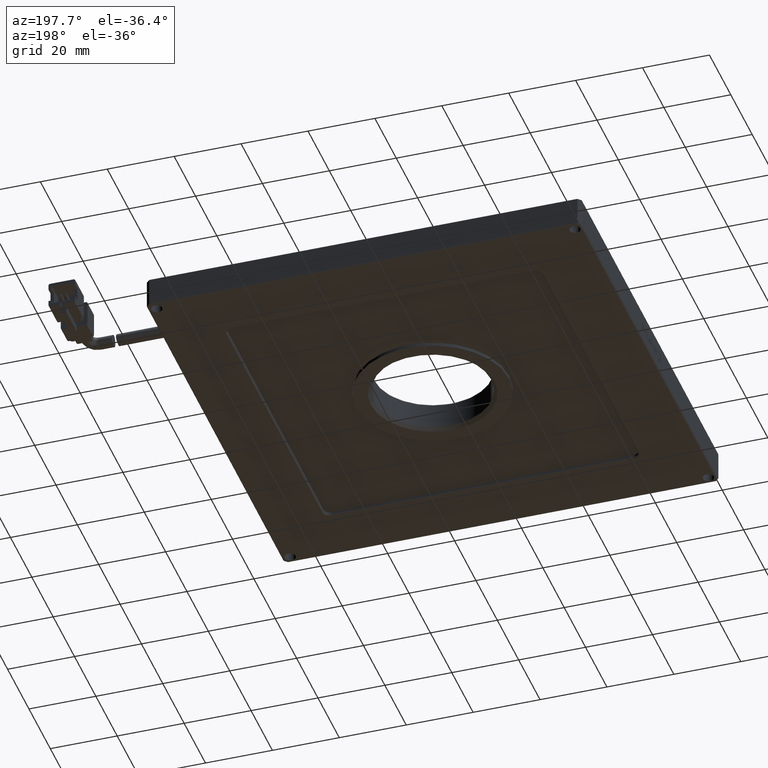
[diagram: clean part render]
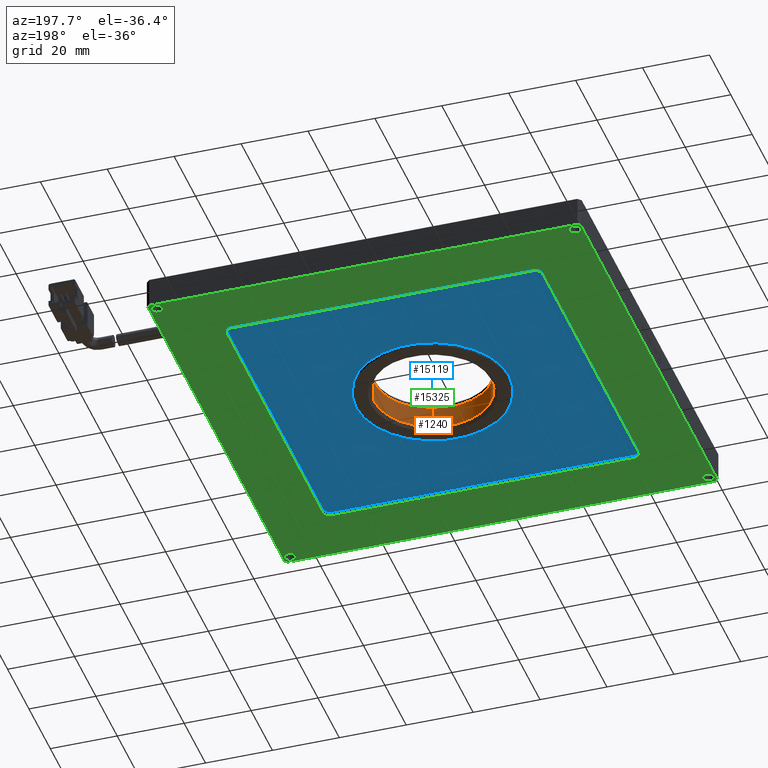
[diagram: same view with three faces highlighted in distinct colors, each labeled with its STEP entity id]
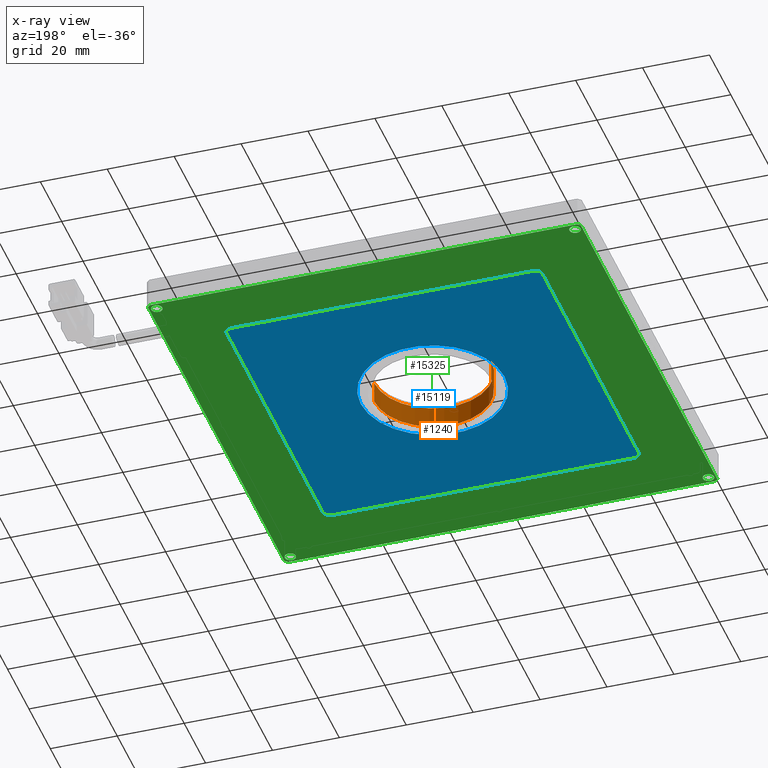
[diagram: x-ray of the same camera — body ghosted, the three highlighted faces saturated]
A machine part, auxiliary view with three faces highlighted in distinct colors.
The next image is the same camera in x-ray (body ghosted, the three faces saturated) — at least one of them is partly hidden behind the body in this view.
Their STEP definitions:

[orange] entity #1240 — the highlighted cylindrical surface (partial cylindrical patch) has radius 17.5 mm, axis along (0, 0, -1).
#455 = CARTESIAN_POINT ( 'NONE',  ( 26.12907407407412200, 24.05944444444444500, -61.53117956449462900 ) ) ;
#744 = DIRECTION ( 'NONE',  ( 0.0000000000000000000, 0.0000000000000000000, -1.000000000000000000 ) ) ;
#895 = CIRCLE ( 'NONE', #17156, 17.50000000000000400 ) ;
#1240 = ADVANCED_FACE ( 'NONE', ( #19250 ), #13852, .F. ) ;
#1347 = AXIS2_PLACEMENT_3D ( 'NONE', #5058, #7903, #11028 ) ;
#1676 = EDGE_CURVE ( 'NONE', #18579, #2080, #895, .T. ) ;
#2080 = VERTEX_POINT ( 'NONE', #3123 ) ;
#3123 = CARTESIAN_POINT ( 'NONE',  ( 8.629074074074115000, 24.05944444444444100, 4.499999999999997300 ) ) ;
#3510 = VECTOR ( 'NONE', #744, 1000.000000000000000 ) ;
#3543 = CARTESIAN_POINT ( 'NONE',  ( 26.12907407407412200, 24.05944444444444500, 4.499999999999997300 ) ) ;
#3770 = CARTESIAN_POINT ( 'NONE',  ( 8.629074074074115000, 24.05944444444444100, -61.53117956449462900 ) ) ;
#3971 = EDGE_CURVE ( 'NONE', #18579, #18957, #8566, .T. ) ;
#5058 = CARTESIAN_POINT ( 'NONE',  ( 26.12907407407412200, 24.05944444444444500, -1.999999999999994900 ) ) ;
#5731 = LINE ( 'NONE', #3770, #3510 ) ;
#6560 = DIRECTION ( 'NONE',  ( -1.000000000000000000, -1.982541115402064900E-016, 0.0000000000000000000 ) ) ;
#6958 = VERTEX_POINT ( 'NONE', #8220 ) ;
#7399 = ORIENTED_EDGE ( 'NONE', *, *, #15546, .F. ) ;
#7769 = DIRECTION ( 'NONE',  ( 0.0000000000000000000, 0.0000000000000000000, -1.000000000000000000 ) ) ;
#7903 = DIRECTION ( 'NONE',  ( 0.0000000000000000000, 0.0000000000000000000, -1.000000000000000000 ) ) ;
#8220 = CARTESIAN_POINT ( 'NONE',  ( 8.629074074074115000, 24.05944444444444100, -1.999999999999994900 ) ) ;
#8428 = ORIENTED_EDGE ( 'NONE', *, *, #1676, .F. ) ;
#8566 = LINE ( 'NONE', #20228, #14686 ) ;
#8946 = ORIENTED_EDGE ( 'NONE', *, *, #9385, .T. ) ;
#9385 = EDGE_CURVE ( 'NONE', #18957, #6958, #13227, .T. ) ;
#9892 = DIRECTION ( 'NONE',  ( 0.0000000000000000000, 0.0000000000000000000, -1.000000000000000000 ) ) ;
#11028 = DIRECTION ( 'NONE',  ( -1.000000000000000000, -1.982541115402064900E-016, 0.0000000000000000000 ) ) ;
#11242 = DIRECTION ( 'NONE',  ( 0.0000000000000000000, 0.0000000000000000000, -1.000000000000000000 ) ) ;
#11480 = AXIS2_PLACEMENT_3D ( 'NONE', #455, #9892, #11949 ) ;
#11949 = DIRECTION ( 'NONE',  ( -1.000000000000000000, -1.982541115402064900E-016, 0.0000000000000000000 ) ) ;
#13227 = CIRCLE ( 'NONE', #1347, 17.50000000000000400 ) ;
#13852 = CYLINDRICAL_SURFACE ( 'NONE', #11480, 17.50000000000000400 ) ;
#14221 = CARTESIAN_POINT ( 'NONE',  ( 43.62907407407412600, 24.05944444444444800, -1.999999999999994900 ) ) ;
#14439 = CARTESIAN_POINT ( 'NONE',  ( 43.62907407407412600, 24.05944444444444800, 4.499999999999997300 ) ) ;
#14686 = VECTOR ( 'NONE', #7769, 1000.000000000000000 ) ;
#15546 = EDGE_CURVE ( 'NONE', #2080, #6958, #5731, .T. ) ;
#17156 = AXIS2_PLACEMENT_3D ( 'NONE', #3543, #11242, #6560 ) ;
#17717 = ORIENTED_EDGE ( 'NONE', *, *, #3971, .T. ) ;
#18579 = VERTEX_POINT ( 'NONE', #14439 ) ;
#18957 = VERTEX_POINT ( 'NONE', #14221 ) ;
#19175 = EDGE_LOOP ( 'NONE', ( #8428, #17717, #8946, #7399 ) ) ;
#19250 = FACE_OUTER_BOUND ( 'NONE', #19175, .T. ) ;
#20228 = CARTESIAN_POINT ( 'NONE',  ( 43.62907407407412600, 24.05944444444444800, -61.53117956449462900 ) ) ;

[blue] entity #15119 — the highlighted planar face has unit normal (0, 0, -1).
#149 = VERTEX_POINT ( 'NONE', #1813 ) ;
#679 = CARTESIAN_POINT ( 'NONE',  ( 82.12907407407411100, -31.94055555555555500, -2.000000000000000000 ) ) ;
#835 = EDGE_CURVE ( 'NONE', #4796, #149, #20055, .T. ) ;
#837 = DIRECTION ( 'NONE',  ( 0.0000000000000000000, 0.0000000000000000000, -1.000000000000000000 ) ) ;
#1411 = VERTEX_POINT ( 'NONE', #18231 ) ;
#1419 = DIRECTION ( 'NONE',  ( -1.000000000000000000, -0.0000000000000000000, 0.0000000000000000000 ) ) ;
#1505 = ORIENTED_EDGE ( 'NONE', *, *, #3098, .T. ) ;
#1813 = CARTESIAN_POINT ( 'NONE',  ( 4.629074074074115000, 24.05944444444444500, -2.000000000000000000 ) ) ;
#1915 = EDGE_CURVE ( 'NONE', #11347, #19629, #15314, .T. ) ;
#2496 = CARTESIAN_POINT ( 'NONE',  ( -29.87092592592589200, 80.05944444444445200, -2.000000000000000000 ) ) ;
#2785 = LINE ( 'NONE', #11569, #14010 ) ;
#2999 = CARTESIAN_POINT ( 'NONE',  ( -29.87092592592589200, -31.94055555555555500, -2.000000000000000000 ) ) ;
#3098 = EDGE_CURVE ( 'NONE', #1411, #11347, #2785, .T. ) ;
#4325 = ORIENTED_EDGE ( 'NONE', *, *, #8796, .T. ) ;
#4527 = EDGE_LOOP ( 'NONE', ( #12439, #18872 ) ) ;
#4796 = VERTEX_POINT ( 'NONE', #20067 ) ;
#5712 = VECTOR ( 'NONE', #20241, 1000.000000000000000 ) ;
#5789 = DIRECTION ( 'NONE',  ( 0.0000000000000000000, 0.0000000000000000000, 1.000000000000000000 ) ) ;
#5790 = CARTESIAN_POINT ( 'NONE',  ( -29.87092592592589200, 80.05944444444445200, -2.000000000000000000 ) ) ;
#5792 = PLANE ( 'NONE',  #6479 ) ;
#5829 = DIRECTION ( 'NONE',  ( -1.000000000000000000, 0.0000000000000000000, 0.0000000000000000000 ) ) ;
#6158 = VERTEX_POINT ( 'NONE', #5790 ) ;
#6479 = AXIS2_PLACEMENT_3D ( 'NONE', #2496, #837, #16503 ) ;
#6805 = DIRECTION ( 'NONE',  ( -0.0000000000000000000, -1.000000000000000000, 0.0000000000000000000 ) ) ;
#7323 = FACE_OUTER_BOUND ( 'NONE', #15830, .T. ) ;
#7446 = CARTESIAN_POINT ( 'NONE',  ( 26.12907407407411900, 24.05944444444444500, -2.000000000000000000 ) ) ;
#8796 = EDGE_CURVE ( 'NONE', #6158, #1411, #16126, .T. ) ;
#9064 = CARTESIAN_POINT ( 'NONE',  ( -29.87092592592589200, -31.94055555555555500, -2.000000000000000000 ) ) ;
#9822 = LINE ( 'NONE', #9064, #5712 ) ;
#9977 = FACE_BOUND ( 'NONE', #4527, .T. ) ;
#11347 = VERTEX_POINT ( 'NONE', #679 ) ;
#11569 = CARTESIAN_POINT ( 'NONE',  ( 82.12907407407411100, -31.94055555555555500, -2.000000000000000000 ) ) ;
#11648 = VECTOR ( 'NONE', #1419, 1000.000000000000000 ) ;
#11755 = CIRCLE ( 'NONE', #17200, 21.50000000000000000 ) ;
#12439 = ORIENTED_EDGE ( 'NONE', *, *, #19292, .T. ) ;
#12765 = DIRECTION ( 'NONE',  ( 1.000000000000000000, 0.0000000000000000000, 0.0000000000000000000 ) ) ;
#14010 = VECTOR ( 'NONE', #6805, 1000.000000000000000 ) ;
#14215 = CARTESIAN_POINT ( 'NONE',  ( -29.87092592592589200, 80.05944444444445200, -2.000000000000000000 ) ) ;
#14594 = CARTESIAN_POINT ( 'NONE',  ( -29.87092592592589200, -31.94055555555555500, -2.000000000000000000 ) ) ;
#14989 = DIRECTION ( 'NONE',  ( -1.000000000000000000, 0.0000000000000000000, 0.0000000000000000000 ) ) ;
#15119 = ADVANCED_FACE ( 'NONE', ( #7323, #9977 ), #5792, .T. ) ;
#15235 = DIRECTION ( 'NONE',  ( 0.0000000000000000000, 0.0000000000000000000, 1.000000000000000000 ) ) ;
#15314 = LINE ( 'NONE', #2999, #11648 ) ;
#15422 = AXIS2_PLACEMENT_3D ( 'NONE', #19807, #5789, #14989 ) ;
#15781 = EDGE_CURVE ( 'NONE', #19629, #6158, #9822, .T. ) ;
#15830 = EDGE_LOOP ( 'NONE', ( #1505, #16558, #15858, #4325 ) ) ;
#15858 = ORIENTED_EDGE ( 'NONE', *, *, #15781, .T. ) ;
#16126 = LINE ( 'NONE', #14215, #18094 ) ;
#16503 = DIRECTION ( 'NONE',  ( -1.000000000000000000, 0.0000000000000000000, -0.0000000000000000000 ) ) ;
#16558 = ORIENTED_EDGE ( 'NONE', *, *, #1915, .T. ) ;
#17200 = AXIS2_PLACEMENT_3D ( 'NONE', #7446, #15235, #5829 ) ;
#18094 = VECTOR ( 'NONE', #12765, 1000.000000000000000 ) ;
#18231 = CARTESIAN_POINT ( 'NONE',  ( 82.12907407407411100, 80.05944444444445200, -2.000000000000000000 ) ) ;
#18872 = ORIENTED_EDGE ( 'NONE', *, *, #835, .T. ) ;
#19292 = EDGE_CURVE ( 'NONE', #149, #4796, #11755, .T. ) ;
#19629 = VERTEX_POINT ( 'NONE', #14594 ) ;
#19807 = CARTESIAN_POINT ( 'NONE',  ( 26.12907407407411900, 24.05944444444444500, -2.000000000000000000 ) ) ;
#20055 = CIRCLE ( 'NONE', #15422, 21.50000000000000000 ) ;
#20067 = CARTESIAN_POINT ( 'NONE',  ( 47.62907407407411900, 24.05944444444444800, -2.000000000000000000 ) ) ;
#20241 = DIRECTION ( 'NONE',  ( -0.0000000000000000000, 1.000000000000000000, 0.0000000000000000000 ) ) ;

[green] entity #15325 — the highlighted planar face has unit normal (0, 0, -1).
#157 = VERTEX_POINT ( 'NONE', #5121 ) ;
#240 = DIRECTION ( 'NONE',  ( 1.000000000000000000, 0.0000000000000000000, 0.0000000000000000000 ) ) ;
#410 = DIRECTION ( 'NONE',  ( -1.000000000000000000, 0.0000000000000000000, -0.0000000000000000000 ) ) ;
#411 = VECTOR ( 'NONE', #1346, 1000.000000000000000 ) ;
#554 = CARTESIAN_POINT ( 'NONE',  ( -18.87092592592591000, -20.94055555555555200, -3.000000000000000000 ) ) ;
#635 = ORIENTED_EDGE ( 'NONE', *, *, #10273, .T. ) ;
#716 = CARTESIAN_POINT ( 'NONE',  ( 90.00481000536216000, -40.64055555555555800, -3.000000000000000000 ) ) ;
#734 = EDGE_CURVE ( 'NONE', #3339, #7480, #1193, .T. ) ;
#931 = CARTESIAN_POINT ( 'NONE',  ( -34.72092592592591100, 86.55944444444445200, -3.000000000000000000 ) ) ;
#936 = DIRECTION ( 'NONE',  ( -1.000000000000000000, 1.810146235794587100E-014, 0.0000000000000000000 ) ) ;
#1193 = LINE ( 'NONE', #19158, #5384 ) ;
#1207 = EDGE_CURVE ( 'NONE', #15502, #17710, #9455, .T. ) ;
#1255 = DIRECTION ( 'NONE',  ( 1.000000000000000000, -0.0000000000000000000, 0.0000000000000000000 ) ) ;
#1346 = DIRECTION ( 'NONE',  ( -0.0000000000000000000, -1.000000000000000000, -0.0000000000000000000 ) ) ;
#1548 = CARTESIAN_POINT ( 'NONE',  ( -21.17092592592590300, 69.05944444444443800, -3.000000000000000000 ) ) ;
#1567 = FACE_BOUND ( 'NONE', #9399, .T. ) ;
#1607 = CARTESIAN_POINT ( 'NONE',  ( 88.62907407407409700, -38.44055555555554800, -3.000000000000000000 ) ) ;
#1711 = DIRECTION ( 'NONE',  ( 0.0000000000000000000, 1.000000000000000000, 0.0000000000000000000 ) ) ;
#1795 = EDGE_CURVE ( 'NONE', #7480, #9260, #7995, .T. ) ;
#2122 = CARTESIAN_POINT ( 'NONE',  ( 73.42907407408090100, -20.94055555555561600, -3.000000000006821200 ) ) ;
#2170 = CARTESIAN_POINT ( 'NONE',  ( -36.37092592592590300, -38.44055555555554800, -3.000000000000000000 ) ) ;
#2186 = VECTOR ( 'NONE', #6774, 1000.000000000000000 ) ;
#2231 = EDGE_CURVE ( 'NONE', #157, #15220, #10857, .T. ) ;
#2354 = DIRECTION ( 'NONE',  ( 1.000000000000000000, 0.0000000000000000000, 0.0000000000000000000 ) ) ;
#2663 = VERTEX_POINT ( 'NONE', #931 ) ;
#2731 = ORIENTED_EDGE ( 'NONE', *, *, #12219, .T. ) ;
#2874 = CARTESIAN_POINT ( 'NONE',  ( -37.74666185721396500, -40.64055555555555800, -3.000000000000000000 ) ) ;
#3197 = DIRECTION ( 'NONE',  ( -1.000000000000000000, 0.0000000000000000000, 0.0000000000000000000 ) ) ;
#3287 = LINE ( 'NONE', #6434, #4021 ) ;
#3305 = VERTEX_POINT ( 'NONE', #9093 ) ;
#3339 = VERTEX_POINT ( 'NONE', #15123 ) ;
#3358 = DIRECTION ( 'NONE',  ( -0.0000000000000000000, -0.0000000000000000000, 1.000000000000000000 ) ) ;
#3393 = EDGE_CURVE ( 'NONE', #15220, #18151, #14229, .T. ) ;
#3653 = VERTEX_POINT ( 'NONE', #14409 ) ;
#3668 = DIRECTION ( 'NONE',  ( 0.7071067811865474600, -0.7071067811865474600, 0.0000000000000000000 ) ) ;
#3725 = VERTEX_POINT ( 'NONE', #16458 ) ;
#3730 = ORIENTED_EDGE ( 'NONE', *, *, #1207, .T. ) ;
#3733 = EDGE_LOOP ( 'NONE', ( #12453, #16240 ) ) ;
#3827 = CIRCLE ( 'NONE', #12523, 1.649999999999984800 ) ;
#3849 = VERTEX_POINT ( 'NONE', #16528 ) ;
#3975 = VERTEX_POINT ( 'NONE', #4973 ) ;
#4021 = VECTOR ( 'NONE', #13716, 1000.000000000000000 ) ;
#4126 = ORIENTED_EDGE ( 'NONE', *, *, #14214, .T. ) ;
#4395 = CIRCLE ( 'NONE', #8292, 1.649999999999991700 ) ;
#4436 = LINE ( 'NONE', #17227, #9780 ) ;
#4769 = FACE_BOUND ( 'NONE', #11117, .T. ) ;
#4836 = ORIENTED_EDGE ( 'NONE', *, *, #8768, .T. ) ;
#4973 = CARTESIAN_POINT ( 'NONE',  ( -37.74666185721396500, -40.64055555555555800, -2.999999999999999100 ) ) ;
#5054 = ORIENTED_EDGE ( 'NONE', *, *, #2231, .T. ) ;
#5121 = CARTESIAN_POINT ( 'NONE',  ( -21.17092592592376800, -20.94055555555555200, -3.000000000000000000 ) ) ;
#5157 = AXIS2_PLACEMENT_3D ( 'NONE', #11830, #11629, #2354 ) ;
#5208 = VECTOR ( 'NONE', #1255, 1000.000000000000000 ) ;
#5251 = DIRECTION ( 'NONE',  ( -0.0000000000000000000, -0.0000000000000000000, 1.000000000000000000 ) ) ;
#5339 = VECTOR ( 'NONE', #19426, 1000.000000000000000 ) ;
#5350 = LINE ( 'NONE', #15565, #411 ) ;
#5384 = VECTOR ( 'NONE', #410, 1000.000000000000000 ) ;
#5481 = CIRCLE ( 'NONE', #5157, 1.649999999999984800 ) ;
#5584 = CARTESIAN_POINT ( 'NONE',  ( 90.82907407407412800, 87.93518037573254300, -3.000000000000009800 ) ) ;
#5719 = VERTEX_POINT ( 'NONE', #19325 ) ;
#5920 = ORIENTED_EDGE ( 'NONE', *, *, #12097, .T. ) ;
#5952 = CIRCLE ( 'NONE', #17569, 1.649999999999984800 ) ;
#5974 = CARTESIAN_POINT ( 'NONE',  ( -38.02092592592589400, 86.55944444444445200, -3.000000000000000000 ) ) ;
#6067 = DIRECTION ( 'NONE',  ( -0.0000000000000000000, -0.0000000000000000000, 1.000000000000000000 ) ) ;
#6237 = VECTOR ( 'NONE', #19286, 1000.000000000000000 ) ;
#6274 = CARTESIAN_POINT ( 'NONE',  ( 86.97907407407410600, -38.44055555555554800, -3.000000000000000000 ) ) ;
#6330 = DIRECTION ( 'NONE',  ( 1.000000000000000000, 0.0000000000000000000, 0.0000000000000000000 ) ) ;
#6434 = CARTESIAN_POINT ( 'NONE',  ( -38.87092592592590300, 88.75944444444445500, -3.000000000000000000 ) ) ;
#6447 = CARTESIAN_POINT ( 'NONE',  ( -38.87092592592590300, 89.05944444444445200, -3.000000000000000000 ) ) ;
#6579 = EDGE_CURVE ( 'NONE', #3725, #13614, #3827, .T. ) ;
#6774 = DIRECTION ( 'NONE',  ( 0.0000000000000000000, 1.000000000000000000, 0.0000000000000000000 ) ) ;
#6877 = DIRECTION ( 'NONE',  ( -0.0000000000000000000, -0.0000000000000000000, 1.000000000000000000 ) ) ;
#7159 = VECTOR ( 'NONE', #3668, 1000.000000000000100 ) ;
#7181 = CARTESIAN_POINT ( 'NONE',  ( -18.87092592592592100, 71.35944444444118100, -3.000000000000000000 ) ) ;
#7210 = VERTEX_POINT ( 'NONE', #18853 ) ;
#7437 = ORIENTED_EDGE ( 'NONE', *, *, #3393, .T. ) ;
#7480 = VERTEX_POINT ( 'NONE', #7181 ) ;
#7584 = DIRECTION ( 'NONE',  ( -0.0000000000000000000, -0.0000000000000000000, 1.000000000000000000 ) ) ;
#7602 = CARTESIAN_POINT ( 'NONE',  ( -18.87092592592590600, -23.24055555555554200, -3.000000000000000000 ) ) ;
#7643 = EDGE_LOOP ( 'NONE', ( #13797, #9176 ) ) ;
#7699 = EDGE_CURVE ( 'NONE', #3653, #10265, #7911, .T. ) ;
#7711 = DIRECTION ( 'NONE',  ( -0.0000000000000000000, -0.0000000000000000000, 1.000000000000000000 ) ) ;
#7911 = CIRCLE ( 'NONE', #19246, 1.649999999999984800 ) ;
#7913 = CARTESIAN_POINT ( 'NONE',  ( 90.27907407407407400, 86.55944444444445200, -3.000000000000000000 ) ) ;
#7936 = EDGE_CURVE ( 'NONE', #19371, #15040, #15700, .T. ) ;
#7995 = CIRCLE ( 'NONE', #17542, 2.300000000009273700 ) ;
#8292 = AXIS2_PLACEMENT_3D ( 'NONE', #16330, #16611, #10098 ) ;
#8768 = EDGE_CURVE ( 'NONE', #16206, #3975, #19593, .T. ) ;
#8918 = EDGE_CURVE ( 'NONE', #5719, #7210, #13426, .T. ) ;
#9093 = CARTESIAN_POINT ( 'NONE',  ( -37.74666185721398600, 88.75944444444445500, -2.999999999999998200 ) ) ;
#9176 = ORIENTED_EDGE ( 'NONE', *, *, #15002, .T. ) ;
#9260 = VERTEX_POINT ( 'NONE', #1548 ) ;
#9399 = EDGE_LOOP ( 'NONE', ( #5054, #7437, #11082, #12455, #14924, #17428, #18818, #635 ) ) ;
#9455 = LINE ( 'NONE', #17625, #5339 ) ;
#9528 = CARTESIAN_POINT ( 'NONE',  ( 88.62907407407409700, 86.55944444444445200, -3.000000000000000000 ) ) ;
#9556 = ORIENTED_EDGE ( 'NONE', *, *, #11485, .T. ) ;
#9618 = CIRCLE ( 'NONE', #14252, 1.649999999999991700 ) ;
#9634 = CARTESIAN_POINT ( 'NONE',  ( -38.87092592592590300, -40.64055555555555800, -3.000000000000000000 ) ) ;
#9780 = VECTOR ( 'NONE', #1711, 1000.000000000000000 ) ;
#10098 = DIRECTION ( 'NONE',  ( 1.000000000000000000, 0.0000000000000000000, 0.0000000000000000000 ) ) ;
#10111 = FACE_BOUND ( 'NONE', #3733, .T. ) ;
#10265 = VERTEX_POINT ( 'NONE', #6274 ) ;
#10270 = EDGE_LOOP ( 'NONE', ( #19168, #5920 ) ) ;
#10273 = EDGE_CURVE ( 'NONE', #9260, #157, #5350, .T. ) ;
#10369 = VECTOR ( 'NONE', #18665, 1000.000000000000100 ) ;
#10666 = CARTESIAN_POINT ( 'NONE',  ( -36.37092592592590300, 86.55944444444445200, -3.000000000000000000 ) ) ;
#10767 = ORIENTED_EDGE ( 'NONE', *, *, #8918, .T. ) ;
#10813 = AXIS2_PLACEMENT_3D ( 'NONE', #17285, #7584, #14136 ) ;
#10857 = CIRCLE ( 'NONE', #11918, 2.300000000009273700 ) ;
#10886 = DIRECTION ( 'NONE',  ( 1.000000000000000000, 0.0000000000000000000, 0.0000000000000000000 ) ) ;
#10900 = EDGE_CURVE ( 'NONE', #17710, #16206, #20211, .T. ) ;
#11019 = DIRECTION ( 'NONE',  ( 1.000000000000000000, 0.0000000000000000000, 0.0000000000000000000 ) ) ;
#11082 = ORIENTED_EDGE ( 'NONE', *, *, #12102, .T. ) ;
#11117 = EDGE_LOOP ( 'NONE', ( #4126, #17812 ) ) ;
#11335 = EDGE_CURVE ( 'NONE', #7210, #3305, #13798, .T. ) ;
#11438 = CARTESIAN_POINT ( 'NONE',  ( 90.00481000536218800, 88.75944444444445500, -3.000000000000000000 ) ) ;
#11481 = EDGE_CURVE ( 'NONE', #13085, #3339, #16740, .T. ) ;
#11485 = EDGE_CURVE ( 'NONE', #3305, #3849, #3287, .T. ) ;
#11499 = DIRECTION ( 'NONE',  ( -1.000000000000000000, 0.0000000000000000000, 0.0000000000000000000 ) ) ;
#11539 = CARTESIAN_POINT ( 'NONE',  ( -38.57092592592590600, 89.05944444444445200, -3.000000000000000000 ) ) ;
#11629 = DIRECTION ( 'NONE',  ( -0.0000000000000000000, -0.0000000000000000000, 1.000000000000000000 ) ) ;
#11830 = CARTESIAN_POINT ( 'NONE',  ( 88.62907407407409700, -38.44055555555554800, -3.000000000000000000 ) ) ;
#11918 = AXIS2_PLACEMENT_3D ( 'NONE', #554, #6877, #11499 ) ;
#12010 = CARTESIAN_POINT ( 'NONE',  ( -34.72092592592591100, -38.44055555555554800, -3.000000000000000000 ) ) ;
#12097 = EDGE_CURVE ( 'NONE', #18740, #2663, #9618, .T. ) ;
#12102 = EDGE_CURVE ( 'NONE', #18151, #17172, #17430, .T. ) ;
#12141 = DIRECTION ( 'NONE',  ( -0.7071067811865441300, 0.7071067811865510100, 0.0000000000000000000 ) ) ;
#12208 = VECTOR ( 'NONE', #15863, 1000.000000000000000 ) ;
#12219 = EDGE_CURVE ( 'NONE', #3849, #15502, #14244, .T. ) ;
#12453 = ORIENTED_EDGE ( 'NONE', *, *, #7699, .T. ) ;
#12455 = ORIENTED_EDGE ( 'NONE', *, *, #14803, .T. ) ;
#12523 = AXIS2_PLACEMENT_3D ( 'NONE', #12701, #3358, #240 ) ;
#12531 = CARTESIAN_POINT ( 'NONE',  ( -36.37092592592590300, 86.55944444444445200, -3.000000000000000000 ) ) ;
#12701 = CARTESIAN_POINT ( 'NONE',  ( 88.62907407407409700, 86.55944444444445200, -3.000000000000000000 ) ) ;
#13064 = ORIENTED_EDGE ( 'NONE', *, *, #10900, .T. ) ;
#13085 = VERTEX_POINT ( 'NONE', #20206 ) ;
#13186 = CARTESIAN_POINT ( 'NONE',  ( -38.57092592592590600, 87.93518037573254300, -3.000000000000000000 ) ) ;
#13373 = CARTESIAN_POINT ( 'NONE',  ( -18.87092592592591000, 69.05944444444445200, -3.000000000000000000 ) ) ;
#13426 = LINE ( 'NONE', #11539, #2186 ) ;
#13444 = EDGE_CURVE ( 'NONE', #3975, #5719, #13820, .T. ) ;
#13576 = CARTESIAN_POINT ( 'NONE',  ( 90.82907407407412800, -39.81629148684359600, -3.000000000000000000 ) ) ;
#13614 = VERTEX_POINT ( 'NONE', #7913 ) ;
#13716 = DIRECTION ( 'NONE',  ( 1.000000000000000000, -0.0000000000000000000, 0.0000000000000000000 ) ) ;
#13797 = ORIENTED_EDGE ( 'NONE', *, *, #7936, .T. ) ;
#13798 = LINE ( 'NONE', #13186, #6237 ) ;
#13820 = LINE ( 'NONE', #2874, #19199 ) ;
#14136 = DIRECTION ( 'NONE',  ( -1.000000000000000000, 0.0000000000000000000, 0.0000000000000000000 ) ) ;
#14203 = AXIS2_PLACEMENT_3D ( 'NONE', #10666, #6067, #15478 ) ;
#14214 = EDGE_CURVE ( 'NONE', #13614, #3725, #5952, .T. ) ;
#14229 = LINE ( 'NONE', #16837, #5208 ) ;
#14244 = LINE ( 'NONE', #11438, #7159 ) ;
#14252 = AXIS2_PLACEMENT_3D ( 'NONE', #12531, #15832, #11019 ) ;
#14254 = CARTESIAN_POINT ( 'NONE',  ( 71.12907407407409700, -20.94055555555555200, -3.000000000013642000 ) ) ;
#14409 = CARTESIAN_POINT ( 'NONE',  ( 90.27907407407407400, -38.44055555555554800, -3.000000000000000000 ) ) ;
#14534 = FACE_BOUND ( 'NONE', #10270, .T. ) ;
#14541 = AXIS2_PLACEMENT_3D ( 'NONE', #2170, #5251, #16159 ) ;
#14787 = FACE_OUTER_BOUND ( 'NONE', #16663, .T. ) ;
#14803 = EDGE_CURVE ( 'NONE', #17172, #13085, #4436, .T. ) ;
#14924 = ORIENTED_EDGE ( 'NONE', *, *, #11481, .T. ) ;
#15002 = EDGE_CURVE ( 'NONE', #15040, #19371, #4395, .T. ) ;
#15040 = VERTEX_POINT ( 'NONE', #16479 ) ;
#15123 = CARTESIAN_POINT ( 'NONE',  ( 71.12907407407415400, 71.35944444447967800, -3.000000000035242900 ) ) ;
#15150 = DIRECTION ( 'NONE',  ( -0.0000000000000000000, -0.0000000000000000000, 1.000000000000000000 ) ) ;
#15220 = VERTEX_POINT ( 'NONE', #7602 ) ;
#15325 = ADVANCED_FACE ( 'NONE', ( #10111, #18924, #4769, #14534, #14787, #1567 ), #15601, .T. ) ;
#15478 = DIRECTION ( 'NONE',  ( 1.000000000000000000, 0.0000000000000000000, 0.0000000000000000000 ) ) ;
#15502 = VERTEX_POINT ( 'NONE', #5584 ) ;
#15565 = CARTESIAN_POINT ( 'NONE',  ( -21.17092592592590300, 89.05944444444445200, -3.000000000000000000 ) ) ;
#15601 = PLANE ( 'NONE',  #16157 ) ;
#15648 = ORIENTED_EDGE ( 'NONE', *, *, #11335, .T. ) ;
#15700 = CIRCLE ( 'NONE', #14541, 1.649999999999991700 ) ;
#15822 = DIRECTION ( 'NONE',  ( -0.0000000000000000000, -0.0000000000000000000, 1.000000000000000000 ) ) ;
#15832 = DIRECTION ( 'NONE',  ( -0.0000000000000000000, -0.0000000000000000000, 1.000000000000000000 ) ) ;
#15863 = DIRECTION ( 'NONE',  ( -1.000000000000000000, 0.0000000000000000000, -0.0000000000000000000 ) ) ;
#15897 = DIRECTION ( 'NONE',  ( -0.0000000000000000000, -0.0000000000000000000, 1.000000000000000000 ) ) ;
#15958 = AXIS2_PLACEMENT_3D ( 'NONE', #14254, #15897, #3197 ) ;
#16157 = AXIS2_PLACEMENT_3D ( 'NONE', #6447, #17165, #18729 ) ;
#16159 = DIRECTION ( 'NONE',  ( 1.000000000000000000, 0.0000000000000000000, 0.0000000000000000000 ) ) ;
#16206 = VERTEX_POINT ( 'NONE', #716 ) ;
#16240 = ORIENTED_EDGE ( 'NONE', *, *, #18670, .T. ) ;
#16330 = CARTESIAN_POINT ( 'NONE',  ( -36.37092592592590300, -38.44055555555554800, -3.000000000000000000 ) ) ;
#16369 = CARTESIAN_POINT ( 'NONE',  ( 71.12907407407415400, -23.24055555556236300, -3.000000000006821200 ) ) ;
#16458 = CARTESIAN_POINT ( 'NONE',  ( 86.97907407407410600, 86.55944444444445200, -3.000000000000000000 ) ) ;
#16479 = CARTESIAN_POINT ( 'NONE',  ( -38.02092592592589400, -38.44055555555554800, -3.000000000000000000 ) ) ;
#16528 = CARTESIAN_POINT ( 'NONE',  ( 90.00481000536218800, 88.75944444444445500, -3.000000000000005300 ) ) ;
#16611 = DIRECTION ( 'NONE',  ( -0.0000000000000000000, -0.0000000000000000000, 1.000000000000000000 ) ) ;
#16663 = EDGE_LOOP ( 'NONE', ( #4836, #19271, #10767, #15648, #9556, #2731, #3730, #13064 ) ) ;
#16740 = CIRCLE ( 'NONE', #10813, 2.299999999991087000 ) ;
#16837 = CARTESIAN_POINT ( 'NONE',  ( -38.87092592592590300, -23.24055555555554200, -3.000000000000000000 ) ) ;
#17165 = DIRECTION ( 'NONE',  ( 0.0000000000000000000, 0.0000000000000000000, -1.000000000000000000 ) ) ;
#17172 = VERTEX_POINT ( 'NONE', #2122 ) ;
#17227 = CARTESIAN_POINT ( 'NONE',  ( 73.42907407407409400, 89.05944444444445200, -3.000000000000000000 ) ) ;
#17285 = CARTESIAN_POINT ( 'NONE',  ( 71.12907407407409700, 69.05944444444445200, -3.000000000070485400 ) ) ;
#17428 = ORIENTED_EDGE ( 'NONE', *, *, #734, .T. ) ;
#17430 = CIRCLE ( 'NONE', #15958, 2.299999999934243500 ) ;
#17542 = AXIS2_PLACEMENT_3D ( 'NONE', #13373, #15150, #936 ) ;
#17569 = AXIS2_PLACEMENT_3D ( 'NONE', #9528, #15822, #6330 ) ;
#17625 = CARTESIAN_POINT ( 'NONE',  ( 90.82907407407410000, 89.05944444444445200, -3.000000000000000000 ) ) ;
#17710 = VERTEX_POINT ( 'NONE', #13576 ) ;
#17812 = ORIENTED_EDGE ( 'NONE', *, *, #6579, .T. ) ;
#17824 = CIRCLE ( 'NONE', #14203, 1.649999999999991700 ) ;
#18151 = VERTEX_POINT ( 'NONE', #16369 ) ;
#18665 = DIRECTION ( 'NONE',  ( -0.7071067811865474600, -0.7071067811865474600, 0.0000000000000000000 ) ) ;
#18670 = EDGE_CURVE ( 'NONE', #10265, #3653, #5481, .T. ) ;
#18729 = DIRECTION ( 'NONE',  ( -1.000000000000000000, 0.0000000000000000000, -0.0000000000000000000 ) ) ;
#18740 = VERTEX_POINT ( 'NONE', #5974 ) ;
#18818 = ORIENTED_EDGE ( 'NONE', *, *, #1795, .T. ) ;
#18853 = CARTESIAN_POINT ( 'NONE',  ( -38.57092592592590600, 87.93518037573260000, -2.999999999999996900 ) ) ;
#18924 = FACE_BOUND ( 'NONE', #7643, .T. ) ;
#19158 = CARTESIAN_POINT ( 'NONE',  ( -38.87092592592590300, 71.35944444444444900, -3.000000000000000000 ) ) ;
#19168 = ORIENTED_EDGE ( 'NONE', *, *, #19884, .T. ) ;
#19199 = VECTOR ( 'NONE', #12141, 999.9999999999998900 ) ;
#19246 = AXIS2_PLACEMENT_3D ( 'NONE', #1607, #7711, #10886 ) ;
#19271 = ORIENTED_EDGE ( 'NONE', *, *, #13444, .T. ) ;
#19286 = DIRECTION ( 'NONE',  ( 0.7071067811865472400, 0.7071067811865479100, 0.0000000000000000000 ) ) ;
#19325 = CARTESIAN_POINT ( 'NONE',  ( -38.57092592592589900, -39.81629148684362500, -2.999999999999999100 ) ) ;
#19371 = VERTEX_POINT ( 'NONE', #12010 ) ;
#19426 = DIRECTION ( 'NONE',  ( -0.0000000000000000000, -1.000000000000000000, -0.0000000000000000000 ) ) ;
#19593 = LINE ( 'NONE', #9634, #12208 ) ;
#19884 = EDGE_CURVE ( 'NONE', #2663, #18740, #17824, .T. ) ;
#20206 = CARTESIAN_POINT ( 'NONE',  ( 73.42907407406106300, 69.05944444444443800, -3.000000000035242900 ) ) ;
#20211 = LINE ( 'NONE', #20269, #10369 ) ;
#20269 = CARTESIAN_POINT ( 'NONE',  ( 90.82907407407410000, -39.81629148684361000, -3.000000000000000000 ) ) ;